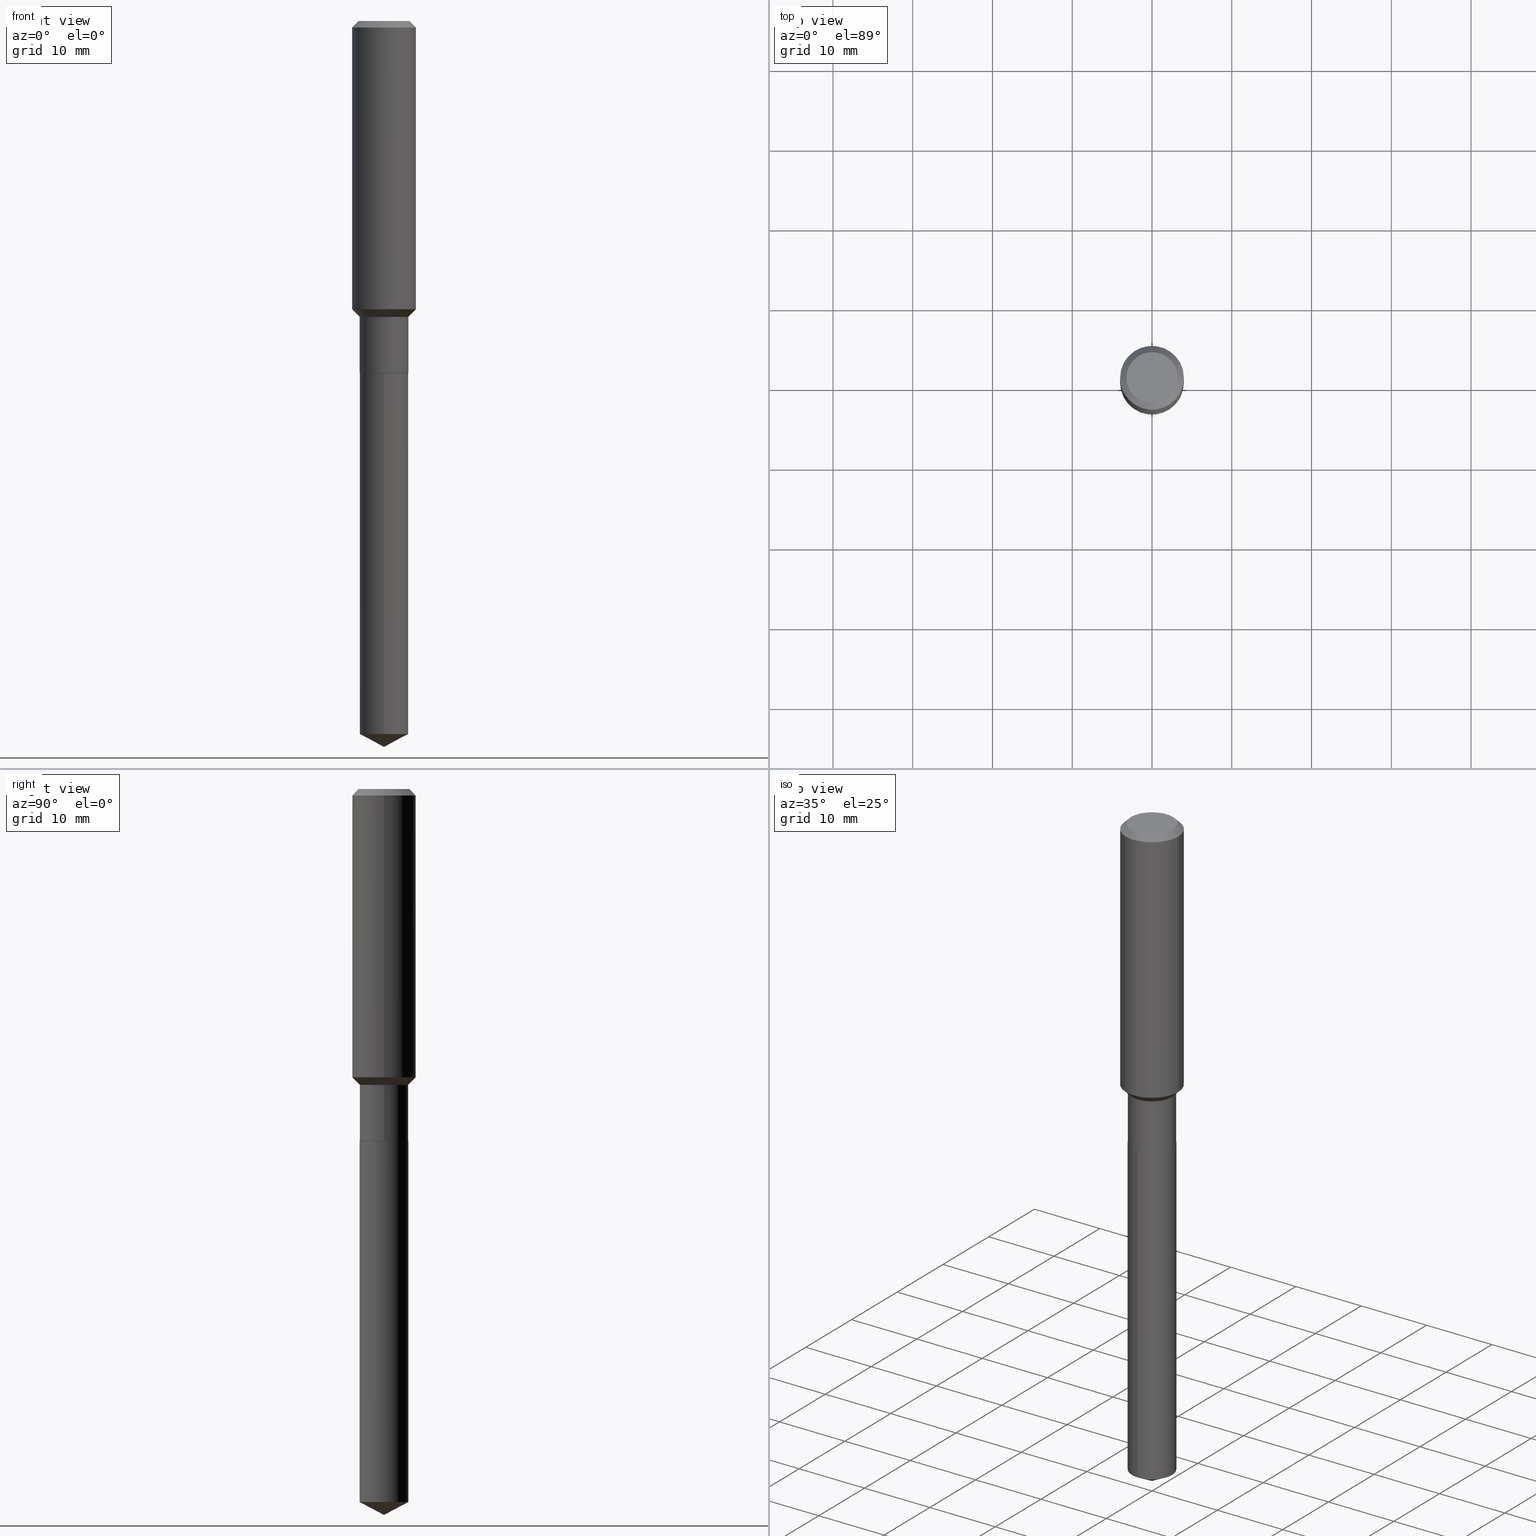
[diagram: canonical four-view strip — front | top / right | iso, engineering-drawing reading convention]
A machine part, canonical four-view strip (front | top / right | iso — engineering-drawing reading convention). The complete STEP part file that produces these views, byte-faithful:
ISO-10303-21;
HEADER;
FILE_DESCRIPTION (( 'STEP AP203' ),
    '1' );
FILE_NAME ('65191.STEP',
    '2024-04-24T21:09:51',
    ( '' ),
    ( '' ),
    'SwSTEP 2.0',
    'SolidWorks 2023',
    '' );
FILE_SCHEMA (( 'CONFIG_CONTROL_DESIGN' ));
ENDSEC;

DATA;
#1 = CARTESIAN_POINT ( 'NONE',  ( 0.1200999999999999707, -5.936565720434997750E-15, -1.460100000000000176 ) ) ;
#2 = VERTEX_POINT ( 'NONE', #164 ) ;
#3 = APPROVAL_PERSON_ORGANIZATION ( #16, #393, #283 ) ;
#4 = ORIENTED_EDGE ( 'NONE', *, *, #98, .T. ) ;
#5 = AXIS2_PLACEMENT_3D ( 'NONE', #293, #406, #59 ) ;
#6 = DIRECTION ( 'NONE',  ( -2.445468806185136597E-29, 3.491481338843145583E-15, 1.000000000000000000 ) ) ;
#7 = ORIENTED_EDGE ( 'NONE', *, *, #250, .T. ) ;
#8 = EDGE_CURVE ( 'NONE', #166, #77, #80, .T. ) ;
#9 = CARTESIAN_POINT ( 'NONE',  ( 7.703226739483226971E-31, -1.099816621735597538E-16, -0.03150000000000019451 ) ) ;
#10 = EDGE_LOOP ( 'NONE', ( #255, #322 ) ) ;
#11 = DIRECTION ( 'NONE',  ( -2.445468806185136597E-29, 3.491481338843145583E-15, 1.000000000000000000 ) ) ;
#12 = DIRECTION ( 'NONE',  ( 1.000000000000000000, -6.982962677686269866E-15, 0.000000000000000000 ) ) ;
#13 = CIRCLE ( 'NONE', #397, 0.1200999999999999984 ) ;
#14 = EDGE_CURVE ( 'NONE', #353, #203, #331, .T. ) ;
#15 = DIRECTION ( 'NONE',  ( -2.445468806185136597E-29, 3.491481338843145583E-15, 1.000000000000000000 ) ) ;
#16 = PERSON_AND_ORGANIZATION ( #313, #70 ) ;
#17 = FACE_OUTER_BOUND ( 'NONE', #157, .T. ) ;
#18 = PERSON_AND_ORGANIZATION ( #313, #70 ) ;
#19 = VERTEX_POINT ( 'NONE', #436 ) ;
#20 = CIRCLE ( 'NONE', #439, 0.1200999999999999707 ) ;
#21 = PERSON_AND_ORGANIZATION ( #313, #70 ) ;
#22 = COORDINATED_UNIVERSAL_TIME_OFFSET ( 5, 0, .BEHIND. ) ;
#23 = PRODUCT_DEFINITION ( 'UNKNOWN', '', #369, #155 ) ;
#24 = MECHANICAL_CONTEXT ( 'NONE', #38, 'mechanical' ) ;
#25 = CC_DESIGN_APPROVAL ( #370, ( #23 ) ) ;
#26 = AXIS2_PLACEMENT_3D ( 'NONE', #399, #279, #472 ) ;
#27 = DIRECTION ( 'NONE',  ( 1.000000000000000000, -6.982962677686266711E-15, 4.876176775795936353E-29 ) ) ;
#28 = CIRCLE ( 'NONE', #142, 0.1195999999999999980 ) ;
#29 = PRODUCT ( '65191', '65191', '', ( #24 ) ) ;
#30 = DIRECTION ( 'NONE',  ( -6.982962677686265922E-15, -1.000000000000000000, 4.549288915344318469E-15 ) ) ;
#31 = EDGE_CURVE ( 'NONE', #88, #189, #62, .T. ) ;
#32 = FACE_OUTER_BOUND ( 'NONE', #343, .T. ) ;
#33 = CARTESIAN_POINT ( 'NONE',  ( -8.386538175900780871E-16, -0.1201000000000060630, -1.736299999999999732 ) ) ;
#34 = CONICAL_SURFACE ( 'NONE', #180, 0.1575000000000000011, 0.7853981633974450594 ) ;
#35 = EDGE_LOOP ( 'NONE', ( #253, #284, #44, #341 ) ) ;
#36 = FACE_OUTER_BOUND ( 'NONE', #419, .T. ) ;
#37 = ORIENTED_EDGE ( 'NONE', *, *, #488, .F. ) ;
#38 = APPLICATION_CONTEXT ( 'configuration controlled 3d designs of mechanical parts and assemblies' ) ;
#39 = DIRECTION ( 'NONE',  ( -2.445468806185136877E-29, 3.491481338843145188E-15, 1.000000000000000000 ) ) ;
#40 = ORIENTED_EDGE ( 'NONE', *, *, #458, .F. ) ;
#41 = CARTESIAN_POINT ( 'NONE',  ( 4.246067488179253683E-29, -6.062259048633354684E-15, -1.736300000000000177 ) ) ;
#42 = LOCAL_TIME ( 17, 9, 51.00000000000000000, #328 ) ;
#43 = AXIS2_PLACEMENT_3D ( 'NONE', #482, #113, #145 ) ;
#44 = ORIENTED_EDGE ( 'NONE', *, *, #357, .T. ) ;
#45 = CARTESIAN_POINT ( 'NONE',  ( 3.570629003910918059E-29, -5.097911902844877459E-15, -1.460100000000000176 ) ) ;
#46 = ORIENTED_EDGE ( 'NONE', *, *, #178, .T. ) ;
#47 = CARTESIAN_POINT ( 'NONE',  ( -8.386538175900345025E-16, -0.1201000000000122803, -3.518841697257456325 ) ) ;
#48 = ORIENTED_EDGE ( 'NONE', *, *, #453, .F. ) ;
#49 = CC_DESIGN_PERSON_AND_ORGANIZATION_ASSIGNMENT ( #174, #326, ( #369 ) ) ;
#50 = CARTESIAN_POINT ( 'NONE',  ( 8.761378463445119169E-29, -1.250893539585335830E-14, -3.582699999999999996 ) ) ;
#51 = VECTOR ( 'NONE', #309, 39.37007874015748143 ) ;
#52 = CARTESIAN_POINT ( 'NONE',  ( -8.751568006193586370E-28, 1.249527383566769955E-13, 35.78737874015747877 ) ) ;
#53 = CARTESIAN_POINT ( 'NONE',  ( 7.703226739483226971E-31, -1.099816621735597538E-16, -0.03150000000000019451 ) ) ;
#54 = PERSON_AND_ORGANIZATION ( #313, #70 ) ;
#55 = ORIENTED_EDGE ( 'NONE', *, *, #488, .T. ) ;
#56 = EDGE_CURVE ( 'NONE', #315, #75, #379, .T. ) ;
#57 = VECTOR ( 'NONE', #264, 39.37007874015748143 ) ;
#58 = APPROVAL_ROLE ( '' ) ;
#59 = DIRECTION ( 'NONE',  ( -6.982962677686265922E-15, -1.000000000000000000, 3.541896320645549825E-15 ) ) ;
#60 = EDGE_LOOP ( 'NONE', ( #282, #194, #414, #148 ) ) ;
#61 = LOCAL_TIME ( 17, 9, 51.00000000000000000, #135 ) ;
#62 = CIRCLE ( 'NONE', #221, 0.1575000000000000011 ) ;
#63 = DIRECTION ( 'NONE',  ( 2.445468806185136597E-29, -3.491481338843145583E-15, -1.000000000000000000 ) ) ;
#64 = VERTEX_POINT ( 'NONE', #83 ) ;
#65 = DIRECTION ( 'NONE',  ( -2.445468806185136597E-29, 3.491481338843145583E-15, 1.000000000000000000 ) ) ;
#66 = DIRECTION ( 'NONE',  ( -2.445435805629381974E-29, 3.491528597517261474E-15, 1.000000000000000000 ) ) ;
#67 = LINE ( 'NONE', #342, #466 ) ;
#68 = EDGE_CURVE ( 'NONE', #227, #2, #198, .T. ) ;
#69 = ORIENTED_EDGE ( 'NONE', *, *, #14, .T. ) ;
#70 = ORGANIZATION ( 'UNSPECIFIED', 'UNSPECIFIED', '' ) ;
#71 = DIRECTION ( 'NONE',  ( -1.000000000000000000, 6.982962677686265922E-15, 0.000000000000000000 ) ) ;
#72 = CIRCLE ( 'NONE', #484, 0.1575000000000001676 ) ;
#73 = ORIENTED_EDGE ( 'NONE', *, *, #420, .F. ) ;
#74 = PLANE ( 'NONE',  #131 ) ;
#75 = VERTEX_POINT ( 'NONE', #468 ) ;
#76 = PRODUCT_DEFINITION_SHAPE ( 'NONE', 'NONE',  #23 ) ;
#77 = VERTEX_POINT ( 'NONE', #241 ) ;
#78 = CARTESIAN_POINT ( 'NONE',  ( 8.761262860828385990E-29, -1.250909950632509124E-14, -3.582699999999999996 ) ) ;
#79 = AXIS2_PLACEMENT_3D ( 'NONE', #45, #85, #464 ) ;
#80 = CIRCLE ( 'NONE', #26, 0.1200999999999999984 ) ;
#81 = ORIENTED_EDGE ( 'NONE', *, *, #200, .T. ) ;
#82 = CYLINDRICAL_SURFACE ( 'NONE', #365, 0.1575000000000000844 ) ;
#83 = CARTESIAN_POINT ( 'NONE',  ( 0.1575000000000001676, -6.067147122507732528E-15, -1.422700000000000076 ) ) ;
#84 =( NAMED_UNIT ( * ) SI_UNIT ( $, .STERADIAN. ) SOLID_ANGLE_UNIT ( ) );
#85 = DIRECTION ( 'NONE',  ( -2.445468806185136597E-29, 3.491481338843145583E-15, 1.000000000000000000 ) ) ;
#86 = DIRECTION ( 'NONE',  ( -0.7071067811865493491, 7.493145998870358893E-15, 0.7071067811865454633 ) ) ;
#87 = DIRECTION ( 'NONE',  ( 1.000000000000000000, -6.982962677686269866E-15, 0.000000000000000000 ) ) ;
#88 = VERTEX_POINT ( 'NONE', #329 ) ;
#89 = VECTOR ( 'NONE', #120, 39.37007874015748143 ) ;
#90 = DATE_AND_TIME ( #291, #61 ) ;
#91 = CARTESIAN_POINT ( 'NONE',  ( -0.1200999999999999707, -4.244550077196997245E-15, -1.460100000000000176 ) ) ;
#92 = COORDINATED_UNIVERSAL_TIME_OFFSET ( 5, 0, .BEHIND. ) ;
#93 = CARTESIAN_POINT ( 'NONE',  ( 8.761262860828385990E-29, -1.250909950632509124E-14, -3.582699999999999996 ) ) ;
#94 = ADVANCED_FACE ( 'NONE', ( #138 ), #447, .T. ) ;
#95 = PERSON_AND_ORGANIZATION_ROLE ( 'classification_officer' ) ;
#96 = CIRCLE ( 'NONE', #445, 0.1200999999999999984 ) ;
#97 = CARTESIAN_POINT ( 'NONE',  ( 3.570629003910918059E-29, -5.097911902844877459E-15, -1.460100000000000176 ) ) ;
#98 = EDGE_CURVE ( 'NONE', #2, #189, #371, .T. ) ;
#99 = ORIENTED_EDGE ( 'NONE', *, *, #178, .F. ) ;
#100 = EDGE_LOOP ( 'NONE', ( #102, #479, #422, #111 ) ) ;
#101 = DIRECTION ( 'NONE',  ( -2.445468806185136877E-29, 3.491481338843145188E-15, 1.000000000000000000 ) ) ;
#102 = ORIENTED_EDGE ( 'NONE', *, *, #68, .F. ) ;
#103 = CC_DESIGN_APPROVAL ( #158, ( #195 ) ) ;
#104 = VECTOR ( 'NONE', #39, 39.37007874015748143 ) ;
#105 = ADVANCED_FACE ( 'NONE', ( #17 ), #259, .T. ) ;
#106 = FACE_OUTER_BOUND ( 'NONE', #461, .T. ) ;
#107 = DIRECTION ( 'NONE',  ( 1.000000000000000000, -6.982962677686265922E-15, 4.876176775795935793E-29 ) ) ;
#108 = EDGE_CURVE ( 'NONE', #233, #19, #168, .T. ) ;
#109 = ORIENTED_EDGE ( 'NONE', *, *, #357, .F. ) ;
#110 = DIRECTION ( 'NONE',  ( 1.000000000000000000, -6.982962677686267499E-15, 0.000000000000000000 ) ) ;
#111 = ORIENTED_EDGE ( 'NONE', *, *, #98, .F. ) ;
#112 = AXIS2_PLACEMENT_3D ( 'NONE', #97, #211, #170 ) ;
#113 = DIRECTION ( 'NONE',  ( -2.445435805629381974E-29, 3.491528597517261474E-15, 1.000000000000000000 ) ) ;
#114 = VECTOR ( 'NONE', #127, 39.37007874015748143 ) ;
#115 = ORIENTED_EDGE ( 'NONE', *, *, #368, .F. ) ;
#116 = CARTESIAN_POINT ( 'NONE',  ( -0.1195999999999999980, -5.209800709490164168E-15, -1.736300000000000177 ) ) ;
#117 = EDGE_LOOP ( 'NONE', ( #304, #384, #378 ) ) ;
#118 = LINE ( 'NONE', #78, #276 ) ;
#119 = EDGE_LOOP ( 'NONE', ( #426, #307, #223 ) ) ;
#120 = DIRECTION ( 'NONE',  ( 0.7071067811866199593, -2.468850131083015945E-15, 0.7071067811864750752 ) ) ;
#121 = AXIS2_PLACEMENT_3D ( 'NONE', #9, #160, #240 ) ;
#122 = CIRCLE ( 'NONE', #187, 0.1575000000000000011 ) ;
#123 = DIRECTION ( 'NONE',  ( -1.000000000000000000, 6.982962677686265922E-15, -4.876176775795935793E-29 ) ) ;
#124 = CARTESIAN_POINT ( 'NONE',  ( 0.000000000000000000, 0.000000000000000000, 0.000000000000000000 ) ) ;
#125 = DIRECTION ( 'NONE',  ( -6.982962677686265922E-15, -1.000000000000000000, 4.549288915344318469E-15 ) ) ;
#126 = CARTESIAN_POINT ( 'NONE',  ( 0.1195999999999999980, -6.897421384884632757E-15, -1.736300000000000177 ) ) ;
#127 = DIRECTION ( 'NONE',  ( -2.445468806185136877E-29, 3.491481338843145188E-15, 1.000000000000000000 ) ) ;
#128 = APPROVAL_DATE_TIME ( #90, #393 ) ;
#129 = VECTOR ( 'NONE', #327, 39.37007874015748143 ) ;
#130 = DIRECTION ( 'NONE',  ( -6.982962677686265922E-15, -1.000000000000000000, 4.549288915344318469E-15 ) ) ;
#131 = AXIS2_PLACEMENT_3D ( 'NONE', #232, #140, #107 ) ;
#132 = DATE_TIME_ROLE ( 'creation_date' ) ;
#133 = ADVANCED_BREP_SHAPE_REPRESENTATION ( '65191', ( #196, #359, #257 ), #425 ) ;
#134 = ADVANCED_FACE ( 'NONE', ( #478 ), #219, .F. ) ;
#135 = COORDINATED_UNIVERSAL_TIME_OFFSET ( 5, 0, .BEHIND. ) ;
#136 = FACE_OUTER_BOUND ( 'NONE', #117, .T. ) ;
#137 = VECTOR ( 'NONE', #197, 39.37007874015748143 ) ;
#138 = FACE_OUTER_BOUND ( 'NONE', #251, .T. ) ;
#139 = ORIENTED_EDGE ( 'NONE', *, *, #8, .T. ) ;
#140 = DIRECTION ( 'NONE',  ( -2.438088387897960049E-29, 3.491481338843145188E-15, 1.000000000000000000 ) ) ;
#141 = CARTESIAN_POINT ( 'NONE',  ( 0.1200999999999999707, -5.936565720434997750E-15, -1.460100000000000176 ) ) ;
#142 = AXIS2_PLACEMENT_3D ( 'NONE', #41, #165, #398 ) ;
#143 = DIRECTION ( 'NONE',  ( -2.445468806185136597E-29, 3.491481338843145583E-15, 1.000000000000000000 ) ) ;
#144 = CARTESIAN_POINT ( 'NONE',  ( 4.246067488179253683E-29, -6.062259048633354684E-15, -1.736300000000000177 ) ) ;
#145 = DIRECTION ( 'NONE',  ( -6.982962677686265922E-15, -1.000000000000000000, 4.549288915344318469E-15 ) ) ;
#146 = ORIENTED_EDGE ( 'NONE', *, *, #262, .F. ) ;
#147 = DIRECTION ( 'NONE',  ( 0.7071067811865493491, -2.468850131082277177E-15, 0.7071067811865454633 ) ) ;
#148 = ORIENTED_EDGE ( 'NONE', *, *, #278, .F. ) ;
#149 = CIRCLE ( 'NONE', #299, 0.1575000000000001676 ) ;
#150 = LENGTH_MEASURE_WITH_UNIT ( LENGTH_MEASURE( 0.02539999999999999897 ), #380 );
#151 = DIRECTION ( 'NONE',  ( 1.000000000000000000, -6.982962677686267499E-15, 4.876176775795936353E-29 ) ) ;
#152 = AXIS2_PLACEMENT_3D ( 'NONE', #248, #209, #363 ) ;
#153 = CIRCLE ( 'NONE', #112, 0.1200999999999999707 ) ;
#154 = ORIENTED_EDGE ( 'NONE', *, *, #453, .T. ) ;
#155 = DESIGN_CONTEXT ( 'detailed design', #435, 'design' ) ;
#156 = LINE ( 'NONE', #344, #51 ) ;
#157 = EDGE_LOOP ( 'NONE', ( #416, #401, #451, #109 ) ) ;
#158 = APPROVAL ( #474, 'UNSPECIFIED' ) ;
#159 = ADVANCED_FACE ( 'NONE', ( #243 ), #317, .T. ) ;
#160 = DIRECTION ( 'NONE',  ( 2.445468806185136597E-29, -3.491481338843145583E-15, -1.000000000000000000 ) ) ;
#161 = ORIENTED_EDGE ( 'NONE', *, *, #483, .F. ) ;
#162 = LINE ( 'NONE', #385, #137 ) ;
#163 = AXIS2_PLACEMENT_3D ( 'NONE', #144, #373, #30 ) ;
#164 = CARTESIAN_POINT ( 'NONE',  ( -0.1260000000000000009, 9.348441284752484904E-16, 3.860086710906114178E-18 ) ) ;
#165 = DIRECTION ( 'NONE',  ( -2.445468806185136597E-29, 3.491481338843145583E-15, 1.000000000000000000 ) ) ;
#166 = VERTEX_POINT ( 'NONE', #470 ) ;
#167 = APPROVAL_ROLE ( '' ) ;
#168 = LINE ( 'NONE', #91, #229 ) ;
#169 = CALENDAR_DATE ( 2024, 24, 4 ) ;
#170 = DIRECTION ( 'NONE',  ( 1.000000000000000000, -6.982962677686267499E-15, 0.000000000000000000 ) ) ;
#171 = AXIS2_PLACEMENT_3D ( 'NONE', #431, #314, #87 ) ;
#172 = DIRECTION ( 'NONE',  ( -2.445468806185136597E-29, 3.491481338843145583E-15, 1.000000000000000000 ) ) ;
#173 = CC_DESIGN_DATE_AND_TIME_ASSIGNMENT ( #244, #132, ( #23 ) ) ;
#174 = PERSON_AND_ORGANIZATION ( #313, #70 ) ;
#175 = CALENDAR_DATE ( 2024, 24, 4 ) ;
#176 = CARTESIAN_POINT ( 'NONE',  ( -0.1200999999999999845, 8.533618256478802134E-16, -5.907641043396141244E-30 ) ) ;
#177 = APPROVAL_STATUS ( 'not_yet_approved' ) ;
#178 = EDGE_CURVE ( 'NONE', #64, #88, #392, .T. ) ;
#179 = CONICAL_SURFACE ( 'NONE', #171, 0.1195999999999999980, 0.7853981633975507526 ) ;
#180 = AXIS2_PLACEMENT_3D ( 'NONE', #410, #63, #71 ) ;
#181 = CARTESIAN_POINT ( 'NONE',  ( -4.719860820353100843E-47, 6.738710358733633822E-33, 1.930043355456229866E-18 ) ) ;
#182 = EDGE_LOOP ( 'NONE', ( #490, #382, #311, #99 ) ) ;
#183 = DIRECTION ( 'NONE',  ( -2.445435805629381974E-29, 3.491528597517261474E-15, 1.000000000000000000 ) ) ;
#184 = FACE_OUTER_BOUND ( 'NONE', #263, .T. ) ;
#185 = AXIS2_PLACEMENT_3D ( 'NONE', #230, #302, #454 ) ;
#186 = ADVANCED_FACE ( 'NONE', ( #480 ), #74, .F. ) ;
#187 = AXIS2_PLACEMENT_3D ( 'NONE', #298, #415, #452 ) ;
#188 = CYLINDRICAL_SURFACE ( 'NONE', #247, 0.1575000000000000844 ) ;
#189 = VERTEX_POINT ( 'NONE', #305 ) ;
#190 = CARTESIAN_POINT ( 'NONE',  ( 0.000000000000000000, 0.000000000000000000, 0.000000000000000000 ) ) ;
#191 = ORIENTED_EDGE ( 'NONE', *, *, #225, .F. ) ;
#192 = DIRECTION ( 'NONE',  ( 1.000000000000000000, -6.982962677686267499E-15, 0.000000000000000000 ) ) ;
#193 = CC_DESIGN_PERSON_AND_ORGANIZATION_ASSIGNMENT ( #54, #207, ( #23 ) ) ;
#194 = ORIENTED_EDGE ( 'NONE', *, *, #208, .T. ) ;
#195 = SECURITY_CLASSIFICATION ( '', '', #367 ) ;
#196 = MANIFOLD_SOLID_BREP ( 'Body-Move/Copy2[1]', #246 ) ;
#197 = DIRECTION ( 'NONE',  ( -0.7071067811866199593, 7.493145998870616062E-15, 0.7071067811864750752 ) ) ;
#198 = CIRCLE ( 'NONE', #152, 0.1260000000000000009 ) ;
#199 = CC_DESIGN_DATE_AND_TIME_ASSIGNMENT ( #361, #400, ( #195 ) ) ;
#200 = EDGE_CURVE ( 'NONE', #77, #166, #13, .T. ) ;
#201 = ORIENTED_EDGE ( 'NONE', *, *, #225, .T. ) ;
#202 = ORIENTED_EDGE ( 'NONE', *, *, #476, .T. ) ;
#203 = VERTEX_POINT ( 'NONE', #457 ) ;
#204 = CONICAL_SURFACE ( 'NONE', #185, 0.1200999999999999707, 0.7853981633974510546 ) ;
#205 = DIRECTION ( 'NONE',  ( 6.273719981627770021E-15, 0.8829475928589302081, 0.4694715627858845886 ) ) ;
#206 = DIRECTION ( 'NONE',  ( -6.982962677686265922E-15, -1.000000000000000000, 3.541896320645549825E-15 ) ) ;
#207 = PERSON_AND_ORGANIZATION_ROLE ( 'creator' ) ;
#208 = EDGE_CURVE ( 'NONE', #203, #353, #411, .T. ) ;
#209 = DIRECTION ( 'NONE',  ( -2.445468806185136597E-29, 3.491481338843145583E-15, 1.000000000000000000 ) ) ;
#210 = PERSON_AND_ORGANIZATION ( #313, #70 ) ;
#211 = DIRECTION ( 'NONE',  ( -2.445468806185136597E-29, 3.491481338843145583E-15, 1.000000000000000000 ) ) ;
#212 = EDGE_CURVE ( 'NONE', #231, #64, #383, .T. ) ;
#213 = CARTESIAN_POINT ( 'NONE',  ( 4.246067488179253683E-29, -6.062259048633354684E-15, -1.736300000000000177 ) ) ;
#214 = LOCAL_TIME ( 17, 9, 51.00000000000000000, #285 ) ;
#215 = PRODUCT_RELATED_PRODUCT_CATEGORY ( 'detail', '', ( #29 ) ) ;
#216 = CALENDAR_DATE ( 2024, 24, 4 ) ;
#217 = PERSON_AND_ORGANIZATION ( #313, #70 ) ;
#218 = ORIENTED_EDGE ( 'NONE', *, *, #212, .F. ) ;
#219 = PLANE ( 'NONE',  #268 ) ;
#220 = LOCAL_TIME ( 17, 9, 51.00000000000000000, #22 ) ;
#221 = AXIS2_PLACEMENT_3D ( 'NONE', #53, #172, #320 ) ;
#222 = CYLINDRICAL_SURFACE ( 'NONE', #163, 0.1200999999999999984 ) ;
#223 = ORIENTED_EDGE ( 'NONE', *, *, #208, .F. ) ;
#224 = DIRECTION ( 'NONE',  ( -6.982962677686265922E-15, -1.000000000000000000, 4.549288915344318469E-15 ) ) ;
#225 = EDGE_CURVE ( 'NONE', #77, #231, #418, .T. ) ;
#226 = FACE_OUTER_BOUND ( 'NONE', #60, .T. ) ;
#227 = VERTEX_POINT ( 'NONE', #332 ) ;
#228 = DIRECTION ( 'NONE',  ( -2.445435805629382254E-29, 3.491528597517261474E-15, 1.000000000000000000 ) ) ;
#229 = VECTOR ( 'NONE', #86, 39.37007874015748854 ) ;
#230 = CARTESIAN_POINT ( 'NONE',  ( 3.570629003910918059E-29, -5.097911902844877459E-15, -1.460100000000000176 ) ) ;
#231 = VERTEX_POINT ( 'NONE', #1 ) ;
#232 = CARTESIAN_POINT ( 'NONE',  ( 4.246067488179253683E-29, -6.062259048633354684E-15, -1.736300000000000177 ) ) ;
#233 = VERTEX_POINT ( 'NONE', #336 ) ;
#234 = CARTESIAN_POINT ( 'NONE',  ( 3.479168470559594109E-29, -4.967330500772143470E-15, -1.422700000000000076 ) ) ;
#235 = ORIENTED_EDGE ( 'NONE', *, *, #290, .F. ) ;
#236 = CIRCLE ( 'NONE', #287, 0.1195999999999999980 ) ;
#237 = DIRECTION ( 'NONE',  ( -2.445468806185136597E-29, 3.491481338843145583E-15, 1.000000000000000000 ) ) ;
#238 = ADVANCED_FACE ( 'NONE', ( #32 ), #256, .T. ) ;
#239 = ORIENTED_EDGE ( 'NONE', *, *, #212, .T. ) ;
#240 = DIRECTION ( 'NONE',  ( -1.000000000000000000, 6.982962677686265922E-15, 0.000000000000000000 ) ) ;
#241 = CARTESIAN_POINT ( 'NONE',  ( 0.1200999999999999984, -6.899167125554054261E-15, -1.735800000000000454 ) ) ;
#242 = LINE ( 'NONE', #50, #337 ) ;
#243 = FACE_OUTER_BOUND ( 'NONE', #119, .T. ) ;
#244 = DATE_AND_TIME ( #175, #220 ) ;
#245 = LOCAL_TIME ( 17, 9, 51.00000000000000000, #92 ) ;
#246 = CLOSED_SHELL ( 'NONE', ( #281, #463, #159, #273, #350 ) ) ;
#247 = AXIS2_PLACEMENT_3D ( 'NONE', #124, #237, #469 ) ;
#248 = CARTESIAN_POINT ( 'NONE',  ( -9.439721640706201686E-47, 1.347742071746726764E-32, 3.860086710912459732E-18 ) ) ;
#249 = APPLICATION_PROTOCOL_DEFINITION ( 'international standard', 'config_control_design', 1994, #38 ) ;
#250 = EDGE_CURVE ( 'NONE', #189, #88, #122, .T. ) ;
#251 = EDGE_LOOP ( 'NONE', ( #81, #154, #40, #191 ) ) ;
#252 = APPROVAL_DATE_TIME ( #323, #158 ) ;
#253 = ORIENTED_EDGE ( 'NONE', *, *, #339, .F. ) ;
#254 = ORIENTED_EDGE ( 'NONE', *, *, #345, .F. ) ;
#255 = ORIENTED_EDGE ( 'NONE', *, *, #56, .T. ) ;
#256 = CYLINDRICAL_SURFACE ( 'NONE', #403, 0.1200999999999999845 ) ;
#257 = AXIS2_PLACEMENT_3D ( 'NONE', #321, #437, #289 ) ;
#258 = EDGE_LOOP ( 'NONE', ( #462, #351, #235, #218 ) ) ;
#259 = CONICAL_SURFACE ( 'NONE', #348, 0.1195999999999999980, 0.7853981633975507526 ) ;
#260 = CYLINDRICAL_SURFACE ( 'NONE', #409, 0.1200999999999999984 ) ;
#261 = CARTESIAN_POINT ( 'NONE',  ( 4.246067488179253683E-29, -6.062259048633354684E-15, -1.736300000000000177 ) ) ;
#262 = EDGE_CURVE ( 'NONE', #19, #189, #67, .T. ) ;
#263 = EDGE_LOOP ( 'NONE', ( #295, #481, #239, #73 ) ) ;
#264 = DIRECTION ( 'NONE',  ( -2.445435805629382254E-29, 3.491528597517261474E-15, 1.000000000000000000 ) ) ;
#265 = CONICAL_SURFACE ( 'NONE', #5, 74.04434902938376695, 1.082104136236487824 ) ;
#266 = ADVANCED_FACE ( 'NONE', ( #303 ), #34, .T. ) ;
#267 = EDGE_LOOP ( 'NONE', ( #55, #272 ) ) ;
#268 = AXIS2_PLACEMENT_3D ( 'NONE', #181, #465, #123 ) ;
#269 = DIRECTION ( 'NONE',  ( 1.000000000000000000, -6.982962677686265922E-15, 0.000000000000000000 ) ) ;
#270 = ORIENTED_EDGE ( 'NONE', *, *, #429, .F. ) ;
#271 = PLANE ( 'NONE',  #306 ) ;
#272 = ORIENTED_EDGE ( 'NONE', *, *, #68, .T. ) ;
#273 = ADVANCED_FACE ( 'NONE', ( #226 ), #222, .T. ) ;
#274 = DIRECTION ( 'NONE',  ( 2.445435805629381413E-29, -3.491528597517261474E-15, -1.000000000000000000 ) ) ;
#275 = VERTEX_POINT ( 'NONE', #485 ) ;
#276 = VECTOR ( 'NONE', #460, 39.37007874015748854 ) ;
#277 = CARTESIAN_POINT ( 'NONE',  ( 4.246067488179253683E-29, -6.062259048633354684E-15, -1.736300000000000177 ) ) ;
#278 = EDGE_CURVE ( 'NONE', #75, #315, #96, .T. ) ;
#279 = DIRECTION ( 'NONE',  ( -2.445468806185136597E-29, 3.491481338843145583E-15, 1.000000000000000000 ) ) ;
#280 = LINE ( 'NONE', #126, #89 ) ;
#281 = ADVANCED_FACE ( 'NONE', ( #106 ), #260, .T. ) ;
#282 = ORIENTED_EDGE ( 'NONE', *, *, #476, .F. ) ;
#283 = APPROVAL_ROLE ( '' ) ;
#284 = ORIENTED_EDGE ( 'NONE', *, *, #483, .T. ) ;
#285 = COORDINATED_UNIVERSAL_TIME_OFFSET ( 5, 0, .BEHIND. ) ;
#286 = VECTOR ( 'NONE', #228, 39.37007874015748143 ) ;
#287 = AXIS2_PLACEMENT_3D ( 'NONE', #449, #65, #375 ) ;
#288 = DIRECTION ( 'NONE',  ( -0.7071067811865452413, 2.468850131082233000E-15, -0.7071067811865497932 ) ) ;
#289 = DIRECTION ( 'NONE',  ( 1.000000000000000000, 0.000000000000000000, 0.000000000000000000 ) ) ;
#290 = EDGE_CURVE ( 'NONE', #64, #19, #72, .T. ) ;
#291 = CALENDAR_DATE ( 2024, 24, 4 ) ;
#292 = APPROVAL_STATUS ( 'not_yet_approved' ) ;
#293 = CARTESIAN_POINT ( 'NONE',  ( -8.751568006193586370E-28, 1.249527383566769955E-13, 35.78737874015747877 ) ) ;
#294 = ADVANCED_FACE ( 'NONE', ( #184 ), #204, .T. ) ;
#295 = ORIENTED_EDGE ( 'NONE', *, *, #108, .F. ) ;
#296 = CARTESIAN_POINT ( 'NONE',  ( 8.533618256479227133E-16, 0.1200999999999939477, -1.736300000000000843 ) ) ;
#297 = CARTESIAN_POINT ( 'NONE',  ( 0.1200999999999999845, -8.386538175901204884E-16, 5.856288307730918652E-30 ) ) ;
#298 = CARTESIAN_POINT ( 'NONE',  ( 7.703226739483226971E-31, -1.099816621735597538E-16, -0.03150000000000019451 ) ) ;
#299 = AXIS2_PLACEMENT_3D ( 'NONE', #234, #11, #316 ) ;
#300 = CLOSED_SHELL ( 'NONE', ( #105, #443, #404, #386, #94, #238, #294, #325, #266, #134, #186, #362 ) ) ;
#301 = DIRECTION ( 'NONE',  ( 1.000000000000000000, -6.982962677686265922E-15, 4.876281427513067258E-29 ) ) ;
#302 = DIRECTION ( 'NONE',  ( -2.445468806185136597E-29, 3.491481338843145583E-15, 1.000000000000000000 ) ) ;
#303 = FACE_OUTER_BOUND ( 'NONE', #310, .T. ) ;
#304 = ORIENTED_EDGE ( 'NONE', *, *, #442, .F. ) ;
#305 = CARTESIAN_POINT ( 'NONE',  ( -0.1575000000000000011, -1.419551272650692874E-15, -0.03150000000000019451 ) ) ;
#306 = AXIS2_PLACEMENT_3D ( 'NONE', #277, #274, #349 ) ;
#307 = ORIENTED_EDGE ( 'NONE', *, *, #442, .T. ) ;
#308 = CONICAL_SURFACE ( 'NONE', #121, 0.1575000000000000011, 0.7853981633974450594 ) ;
#309 = DIRECTION ( 'NONE',  ( 0.7071067811865452413, -7.319954787623248157E-15, -0.7071067811865497932 ) ) ;
#310 = EDGE_LOOP ( 'NONE', ( #270, #37, #4, #7 ) ) ;
#311 = ORIENTED_EDGE ( 'NONE', *, *, #31, .F. ) ;
#312 = EDGE_CURVE ( 'NONE', #353, #315, #413, .T. ) ;
#313 = PERSON ( 'UNSPECIFIED', 'UNSPECIFIED', 'UNSPECIFIED', ('UNSPECIFIED'), ('UNSPECIFIED'), ('UNSPECIFIED') ) ;
#314 = DIRECTION ( 'NONE',  ( -2.445468806185136597E-29, 3.491481338843145583E-15, 1.000000000000000000 ) ) ;
#315 = VERTEX_POINT ( 'NONE', #33 ) ;
#316 = DIRECTION ( 'NONE',  ( 1.000000000000000000, -6.982962677686267499E-15, 0.000000000000000000 ) ) ;
#317 = CONICAL_SURFACE ( 'NONE', #330, 74.04434902938376695, 1.082104136236487824 ) ;
#318 = DIRECTION ( 'NONE',  ( -2.445435805629381974E-29, 3.491528597517261474E-15, 1.000000000000000000 ) ) ;
#319 = FACE_OUTER_BOUND ( 'NONE', #10, .T. ) ;
#320 = DIRECTION ( 'NONE',  ( 1.000000000000000000, -6.982962677686265922E-15, 0.000000000000000000 ) ) ;
#321 = CARTESIAN_POINT ( 'NONE',  ( 0.000000000000000000, 0.000000000000000000, 0.000000000000000000 ) ) ;
#322 = ORIENTED_EDGE ( 'NONE', *, *, #278, .T. ) ;
#323 = DATE_AND_TIME ( #169, #42 ) ;
#324 = LINE ( 'NONE', #296, #286 ) ;
#325 = ADVANCED_FACE ( 'NONE', ( #36 ), #188, .T. ) ;
#326 = PERSON_AND_ORGANIZATION_ROLE ( 'design_supplier' ) ;
#327 = DIRECTION ( 'NONE',  ( -2.445468806185136877E-29, 3.491481338843145188E-15, 1.000000000000000000 ) ) ;
#328 = COORDINATED_UNIVERSAL_TIME_OFFSET ( 5, 0, .BEHIND. ) ;
#329 = CARTESIAN_POINT ( 'NONE',  ( 0.1575000000000000011, -1.209798283909146741E-15, -0.03150000000000019451 ) ) ;
#330 = AXIS2_PLACEMENT_3D ( 'NONE', #52, #430, #206 ) ;
#331 = CIRCLE ( 'NONE', #372, 0.1200999999999999984 ) ;
#332 = CARTESIAN_POINT ( 'NONE',  ( 0.1260000000000000009, -1.027466422270894443E-15, 3.860086710919128072E-18 ) ) ;
#333 = CC_DESIGN_PERSON_AND_ORGANIZATION_ASSIGNMENT ( #444, #396, ( #369 ) ) ;
#334 = DIRECTION ( 'NONE',  ( -2.445468806185136597E-29, 3.491481338843145583E-15, 1.000000000000000000 ) ) ;
#335 = CARTESIAN_POINT ( 'NONE',  ( -9.439721640706201686E-47, 1.347742071746726764E-32, 3.860086710912459732E-18 ) ) ;
#336 = CARTESIAN_POINT ( 'NONE',  ( -0.1200999999999999707, -4.725850779756525106E-15, -1.460100000000000176 ) ) ;
#337 = VECTOR ( 'NONE', #205, 39.37007874015748143 ) ;
#338 = VECTOR ( 'NONE', #147, 39.37007874015748854 ) ;
#339 = EDGE_CURVE ( 'NONE', #347, #166, #162, .T. ) ;
#340 = DIRECTION ( 'NONE',  ( -6.982962677686265922E-15, -1.000000000000000000, 4.549288915344318469E-15 ) ) ;
#341 = ORIENTED_EDGE ( 'NONE', *, *, #8, .F. ) ;
#342 = CARTESIAN_POINT ( 'NONE',  ( -0.1575000000000000844, 1.119104808822158392E-15, -7.747322767151481189E-30 ) ) ;
#343 = EDGE_LOOP ( 'NONE', ( #48, #139, #201, #115 ) ) ;
#344 = CARTESIAN_POINT ( 'NONE',  ( 0.1575000000000000011, -1.190510096822576026E-15, -0.03150000000000019451 ) ) ;
#345 = EDGE_CURVE ( 'NONE', #275, #347, #28, .T. ) ;
#346 = CC_DESIGN_APPROVAL ( #393, ( #369 ) ) ;
#347 = VERTEX_POINT ( 'NONE', #116 ) ;
#348 = AXIS2_PLACEMENT_3D ( 'NONE', #432, #440, #12 ) ;
#349 = DIRECTION ( 'NONE',  ( 6.982962677686265922E-15, 1.000000000000000000, -3.491528597517261474E-15 ) ) ;
#350 = ADVANCED_FACE ( 'NONE', ( #319 ), #271, .F. ) ;
#351 = ORIENTED_EDGE ( 'NONE', *, *, #108, .T. ) ;
#352 = FACE_OUTER_BOUND ( 'NONE', #100, .T. ) ;
#353 = VERTEX_POINT ( 'NONE', #47 ) ;
#354 =( CONVERSION_BASED_UNIT ( 'INCH', #150 ) LENGTH_UNIT ( ) NAMED_UNIT ( #487 ) );
#355 = CARTESIAN_POINT ( 'NONE',  ( 8.605158779680008010E-29, -1.228605436087472145E-14, -3.518841697257456769 ) ) ;
#356 = APPROVAL_PERSON_ORGANIZATION ( #217, #370, #58 ) ;
#357 = EDGE_CURVE ( 'NONE', #275, #77, #280, .T. ) ;
#358 = CARTESIAN_POINT ( 'NONE',  ( 0.1575000000000000844, -1.099816621735587677E-15, 7.679978421878603638E-30 ) ) ;
#359 = MANIFOLD_SOLID_BREP ( 'Body-Move/Copy2[2]', #300 ) ;
#360 = CARTESIAN_POINT ( 'NONE',  ( -0.1575000000000000011, 9.898349595620272334E-16, -0.03150000000000019451 ) ) ;
#361 = DATE_AND_TIME ( #216, #214 ) ;
#362 = ADVANCED_FACE ( 'NONE', ( #434 ), #179, .T. ) ;
#363 = DIRECTION ( 'NONE',  ( 1.000000000000000000, -6.982962677686265922E-15, 4.876281427513067258E-29 ) ) ;
#364 = CALENDAR_DATE ( 2024, 24, 4 ) ;
#365 = AXIS2_PLACEMENT_3D ( 'NONE', #424, #6, #151 ) ;
#366 = SHAPE_DEFINITION_REPRESENTATION ( #76, #133 ) ;
#367 = SECURITY_CLASSIFICATION_LEVEL ( 'unclassified' ) ;
#368 = EDGE_CURVE ( 'NONE', #233, #231, #20, .T. ) ;
#369 = PRODUCT_DEFINITION_FORMATION_WITH_SPECIFIED_SOURCE ( 'ANY', '', #29, .NOT_KNOWN. ) ;
#370 = APPROVAL ( #177, 'UNSPECIFIED' ) ;
#371 = LINE ( 'NONE', #360, #486 ) ;
#372 = AXIS2_PLACEMENT_3D ( 'NONE', #355, #408, #130 ) ;
#373 = DIRECTION ( 'NONE',  ( -2.445435805629381974E-29, 3.491528597517261474E-15, 1.000000000000000000 ) ) ;
#374 = ORIENTED_EDGE ( 'NONE', *, *, #420, .T. ) ;
#375 = DIRECTION ( 'NONE',  ( 1.000000000000000000, -6.982962677686269866E-15, 0.000000000000000000 ) ) ;
#376 = DIRECTION ( 'NONE',  ( -2.445468806185136597E-29, 3.491481338843145583E-15, 1.000000000000000000 ) ) ;
#377 = CARTESIAN_POINT ( 'NONE',  ( -8.386538175900780871E-16, -0.1201000000000060630, -1.736299999999999732 ) ) ;
#378 = ORIENTED_EDGE ( 'NONE', *, *, #14, .F. ) ;
#379 = CIRCLE ( 'NONE', #417, 0.1200999999999999984 ) ;
#380 =( LENGTH_UNIT ( ) NAMED_UNIT ( * ) SI_UNIT ( $, .METRE. ) );
#381 = CARTESIAN_POINT ( 'NONE',  ( 3.479168470559594109E-29, -4.967330500772143470E-15, -1.422700000000000076 ) ) ;
#382 = ORIENTED_EDGE ( 'NONE', *, *, #262, .T. ) ;
#383 = LINE ( 'NONE', #141, #338 ) ;
#384 = ORIENTED_EDGE ( 'NONE', *, *, #446, .T. ) ;
#385 = CARTESIAN_POINT ( 'NONE',  ( -0.1195999999999999980, -5.212449936664275369E-15, -1.736300000000000177 ) ) ;
#386 = ADVANCED_FACE ( 'NONE', ( #391 ), #477, .T. ) ;
#387 = CC_DESIGN_SECURITY_CLASSIFICATION ( #195, ( #369 ) ) ;
#388 = EDGE_LOOP ( 'NONE', ( #254, #161 ) ) ;
#389 = CARTESIAN_POINT ( 'NONE',  ( 3.570629003910918059E-29, -5.097911902844877459E-15, -1.460100000000000176 ) ) ;
#390 = ORIENTED_EDGE ( 'NONE', *, *, #312, .F. ) ;
#391 = FACE_OUTER_BOUND ( 'NONE', #258, .T. ) ;
#392 = LINE ( 'NONE', #358, #114 ) ;
#393 = APPROVAL ( #292, 'UNSPECIFIED' ) ;
#394 = CARTESIAN_POINT ( 'NONE',  ( 0.000000000000000000, 0.000000000000000000, 0.000000000000000000 ) ) ;
#395 = CIRCLE ( 'NONE', #402, 0.1260000000000000009 ) ;
#396 = PERSON_AND_ORGANIZATION_ROLE ( 'creator' ) ;
#397 = AXIS2_PLACEMENT_3D ( 'NONE', #489, #334, #269 ) ;
#398 = DIRECTION ( 'NONE',  ( 1.000000000000000000, -6.982962677686269866E-15, 0.000000000000000000 ) ) ;
#399 = CARTESIAN_POINT ( 'NONE',  ( 4.244844753776160881E-29, -6.060513307963933970E-15, -1.735800000000000454 ) ) ;
#400 = DATE_TIME_ROLE ( 'classification_date' ) ;
#401 = ORIENTED_EDGE ( 'NONE', *, *, #339, .T. ) ;
#402 = AXIS2_PLACEMENT_3D ( 'NONE', #335, #143, #301 ) ;
#403 = AXIS2_PLACEMENT_3D ( 'NONE', #190, #450, #455 ) ;
#404 = ADVANCED_FACE ( 'NONE', ( #428 ), #82, .T. ) ;
#405 = PERSON_AND_ORGANIZATION_ROLE ( 'design_owner' ) ;
#406 = DIRECTION ( 'NONE',  ( -2.445435805629381974E-29, 3.491528597517261474E-15, 1.000000000000000000 ) ) ;
#407 = CC_DESIGN_PERSON_AND_ORGANIZATION_ASSIGNMENT ( #210, #405, ( #29 ) ) ;
#408 = DIRECTION ( 'NONE',  ( -2.445435805629381974E-29, 3.491528597517261474E-15, 1.000000000000000000 ) ) ;
#409 = AXIS2_PLACEMENT_3D ( 'NONE', #412, #66, #224 ) ;
#410 = CARTESIAN_POINT ( 'NONE',  ( 7.703226739483226971E-31, -1.099816621735597538E-16, -0.03150000000000019451 ) ) ;
#411 = CIRCLE ( 'NONE', #43, 0.1200999999999999984 ) ;
#412 = CARTESIAN_POINT ( 'NONE',  ( 4.246067488179253683E-29, -6.062259048633354684E-15, -1.736300000000000177 ) ) ;
#413 = LINE ( 'NONE', #377, #57 ) ;
#414 = ORIENTED_EDGE ( 'NONE', *, *, #312, .T. ) ;
#415 = DIRECTION ( 'NONE',  ( -2.445468806185136597E-29, 3.491481338843145583E-15, 1.000000000000000000 ) ) ;
#416 = ORIENTED_EDGE ( 'NONE', *, *, #345, .T. ) ;
#417 = AXIS2_PLACEMENT_3D ( 'NONE', #213, #318, #125 ) ;
#418 = LINE ( 'NONE', #297, #104 ) ;
#419 = EDGE_LOOP ( 'NONE', ( #146, #374, #46, #456 ) ) ;
#420 = EDGE_CURVE ( 'NONE', #19, #64, #149, .T. ) ;
#421 = DIRECTION ( 'NONE',  ( -2.445468806185136597E-29, 3.491481338843145583E-15, 1.000000000000000000 ) ) ;
#422 = ORIENTED_EDGE ( 'NONE', *, *, #31, .T. ) ;
#423 = CC_DESIGN_PERSON_AND_ORGANIZATION_ASSIGNMENT ( #21, #95, ( #195 ) ) ;
#424 = CARTESIAN_POINT ( 'NONE',  ( 0.000000000000000000, 0.000000000000000000, 0.000000000000000000 ) ) ;
#425 =( GEOMETRIC_REPRESENTATION_CONTEXT ( 3 ) GLOBAL_UNCERTAINTY_ASSIGNED_CONTEXT ( ( #471 ) ) GLOBAL_UNIT_ASSIGNED_CONTEXT ( ( #354, #467, #84 ) ) REPRESENTATION_CONTEXT ( 'NONE', 'WORKASPACE' ) );
#426 = ORIENTED_EDGE ( 'NONE', *, *, #446, .F. ) ;
#427 = AXIS2_PLACEMENT_3D ( 'NONE', #394, #15, #27 ) ;
#428 = FACE_OUTER_BOUND ( 'NONE', #182, .T. ) ;
#429 = EDGE_CURVE ( 'NONE', #227, #88, #156, .T. ) ;
#430 = DIRECTION ( 'NONE',  ( -2.445435805629381974E-29, 3.491528597517261474E-15, 1.000000000000000000 ) ) ;
#431 = CARTESIAN_POINT ( 'NONE',  ( 4.246067488179253683E-29, -6.062259048633354684E-15, -1.736300000000000177 ) ) ;
#432 = CARTESIAN_POINT ( 'NONE',  ( 4.246067488179253683E-29, -6.062259048633354684E-15, -1.736300000000000177 ) ) ;
#433 = APPROVAL_DATE_TIME ( #475, #370 ) ;
#434 = FACE_OUTER_BOUND ( 'NONE', #35, .T. ) ;
#435 = APPLICATION_CONTEXT ( 'configuration controlled 3d designs of mechanical parts and assemblies' ) ;
#436 = CARTESIAN_POINT ( 'NONE',  ( -0.1575000000000001676, -3.848225691949985078E-15, -1.422700000000000076 ) ) ;
#437 = DIRECTION ( 'NONE',  ( 0.000000000000000000, 0.000000000000000000, 1.000000000000000000 ) ) ;
#438 = LINE ( 'NONE', #176, #129 ) ;
#439 = AXIS2_PLACEMENT_3D ( 'NONE', #389, #421, #192 ) ;
#440 = DIRECTION ( 'NONE',  ( -2.445468806185136597E-29, 3.491481338843145583E-15, 1.000000000000000000 ) ) ;
#441 = APPLICATION_PROTOCOL_DEFINITION ( 'international standard', 'config_control_design', 1994, #435 ) ;
#442 = EDGE_CURVE ( 'NONE', #448, #353, #118, .T. ) ;
#443 = ADVANCED_FACE ( 'NONE', ( #352 ), #308, .T. ) ;
#444 = PERSON_AND_ORGANIZATION ( #313, #70 ) ;
#445 = AXIS2_PLACEMENT_3D ( 'NONE', #261, #183, #340 ) ;
#446 = EDGE_CURVE ( 'NONE', #448, #203, #242, .T. ) ;
#447 = CYLINDRICAL_SURFACE ( 'NONE', #427, 0.1200999999999999845 ) ;
#448 = VERTEX_POINT ( 'NONE', #93 ) ;
#449 = CARTESIAN_POINT ( 'NONE',  ( 4.246067488179253683E-29, -6.062259048633354684E-15, -1.736300000000000177 ) ) ;
#450 = DIRECTION ( 'NONE',  ( -2.445468806185136597E-29, 3.491481338843145583E-15, 1.000000000000000000 ) ) ;
#451 = ORIENTED_EDGE ( 'NONE', *, *, #200, .F. ) ;
#452 = DIRECTION ( 'NONE',  ( 1.000000000000000000, -6.982962677686265922E-15, 0.000000000000000000 ) ) ;
#453 = EDGE_CURVE ( 'NONE', #166, #233, #438, .T. ) ;
#454 = DIRECTION ( 'NONE',  ( 1.000000000000000000, -6.982962677686267499E-15, 0.000000000000000000 ) ) ;
#455 = DIRECTION ( 'NONE',  ( 1.000000000000000000, -6.982962677686266711E-15, 4.876176775795936353E-29 ) ) ;
#456 = ORIENTED_EDGE ( 'NONE', *, *, #250, .F. ) ;
#457 = CARTESIAN_POINT ( 'NONE',  ( 8.533618256479661007E-16, 0.1200999999999877166, -3.518841697257457657 ) ) ;
#458 = EDGE_CURVE ( 'NONE', #231, #233, #153, .T. ) ;
#459 = ORIENTED_EDGE ( 'NONE', *, *, #56, .F. ) ;
#460 = DIRECTION ( 'NONE',  ( -6.165590087286839185E-15, -0.8829475928589269884, 0.4694715627858908058 ) ) ;
#461 = EDGE_LOOP ( 'NONE', ( #69, #202, #459, #390 ) ) ;
#462 = ORIENTED_EDGE ( 'NONE', *, *, #458, .T. ) ;
#463 = ADVANCED_FACE ( 'NONE', ( #136 ), #265, .T. ) ;
#464 = DIRECTION ( 'NONE',  ( 1.000000000000000000, -6.982962677686267499E-15, 0.000000000000000000 ) ) ;
#465 = DIRECTION ( 'NONE',  ( 2.438088387897960049E-29, -3.491481338843145188E-15, -1.000000000000000000 ) ) ;
#466 = VECTOR ( 'NONE', #101, 39.37007874015748143 ) ;
#467 =( NAMED_UNIT ( * ) PLANE_ANGLE_UNIT ( ) SI_UNIT ( $, .RADIAN. ) );
#468 = CARTESIAN_POINT ( 'NONE',  ( 8.533618256479665937E-16, 0.1200999999999939477, -1.736300000000000843 ) ) ;
#469 = DIRECTION ( 'NONE',  ( 1.000000000000000000, -6.982962677686267499E-15, 4.876176775795936353E-29 ) ) ;
#470 = CARTESIAN_POINT ( 'NONE',  ( -0.1201000000000000262, -4.725850779756525106E-15, -1.735800000000000454 ) ) ;
#471 = UNCERTAINTY_MEASURE_WITH_UNIT (LENGTH_MEASURE( 1.000000000000000082E-05 ), #354, 'distance_accuracy_value', 'NONE');
#472 = DIRECTION ( 'NONE',  ( 1.000000000000000000, -6.982962677686265922E-15, 0.000000000000000000 ) ) ;
#473 = APPROVAL_PERSON_ORGANIZATION ( #18, #158, #167 ) ;
#474 = APPROVAL_STATUS ( 'not_yet_approved' ) ;
#475 = DATE_AND_TIME ( #364, #245 ) ;
#476 = EDGE_CURVE ( 'NONE', #203, #75, #324, .T. ) ;
#477 = CONICAL_SURFACE ( 'NONE', #79, 0.1200999999999999707, 0.7853981633974510546 ) ;
#478 = FACE_OUTER_BOUND ( 'NONE', #267, .T. ) ;
#479 = ORIENTED_EDGE ( 'NONE', *, *, #429, .T. ) ;
#480 = FACE_OUTER_BOUND ( 'NONE', #388, .T. ) ;
#481 = ORIENTED_EDGE ( 'NONE', *, *, #368, .T. ) ;
#482 = CARTESIAN_POINT ( 'NONE',  ( 8.605158779680008010E-29, -1.228605436087472145E-14, -3.518841697257456769 ) ) ;
#483 = EDGE_CURVE ( 'NONE', #347, #275, #236, .T. ) ;
#484 = AXIS2_PLACEMENT_3D ( 'NONE', #381, #376, #110 ) ;
#485 = CARTESIAN_POINT ( 'NONE',  ( 0.1195999999999999980, -6.897421384884632757E-15, -1.736300000000000177 ) ) ;
#486 = VECTOR ( 'NONE', #288, 39.37007874015748143 ) ;
#487 = DIMENSIONAL_EXPONENTS ( 1.000000000000000000, 0.000000000000000000, 0.000000000000000000, 0.000000000000000000, 0.000000000000000000, 0.000000000000000000, 0.000000000000000000 ) ;
#488 = EDGE_CURVE ( 'NONE', #2, #227, #395, .T. ) ;
#489 = CARTESIAN_POINT ( 'NONE',  ( 4.244844753776160881E-29, -6.060513307963933970E-15, -1.735800000000000454 ) ) ;
#490 = ORIENTED_EDGE ( 'NONE', *, *, #290, .T. ) ;
ENDSEC;
END-ISO-10303-21;
